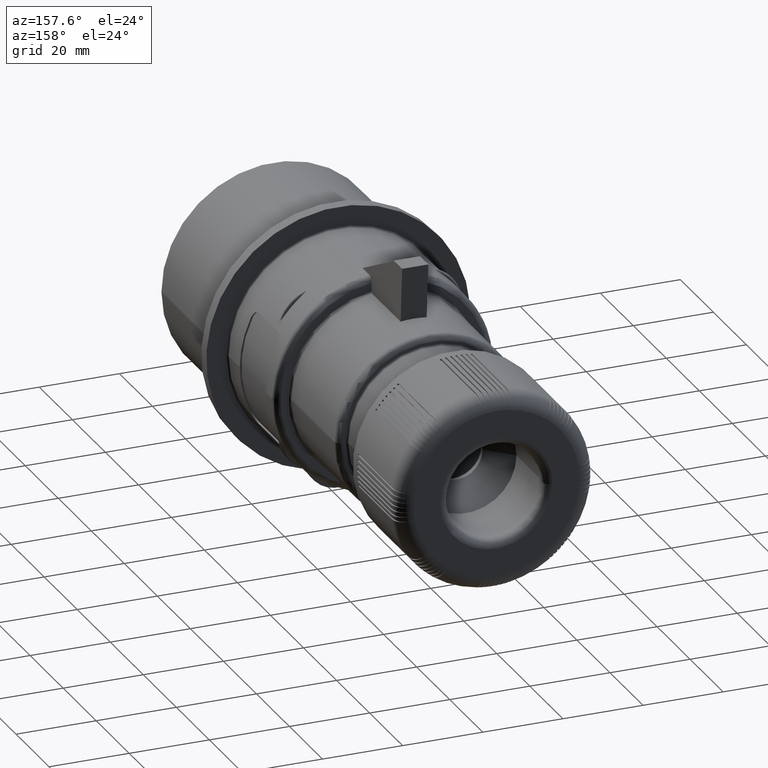
[diagram: clean part render]
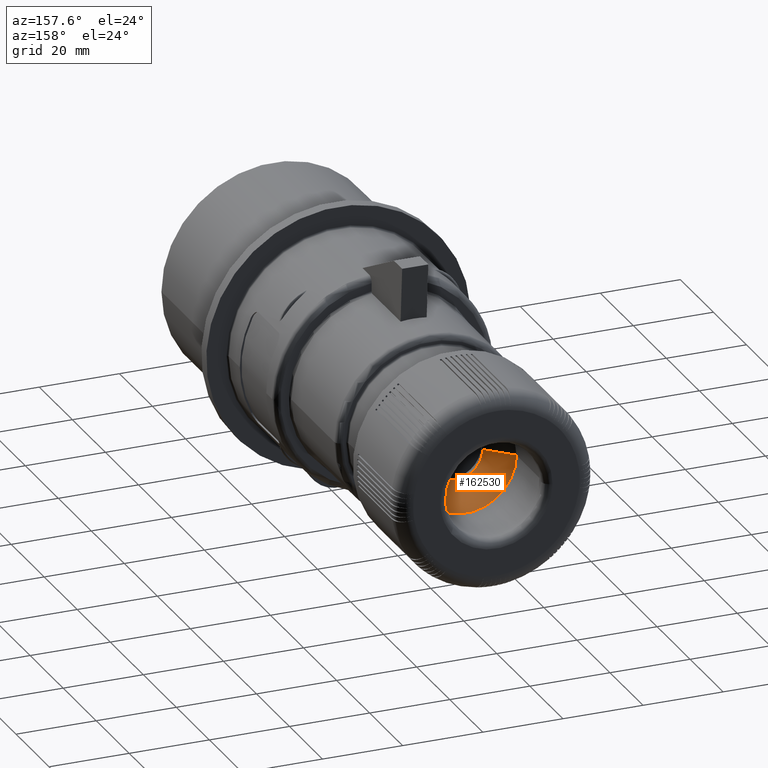
[diagram: same view with one face highlighted and labeled with its STEP entity id]
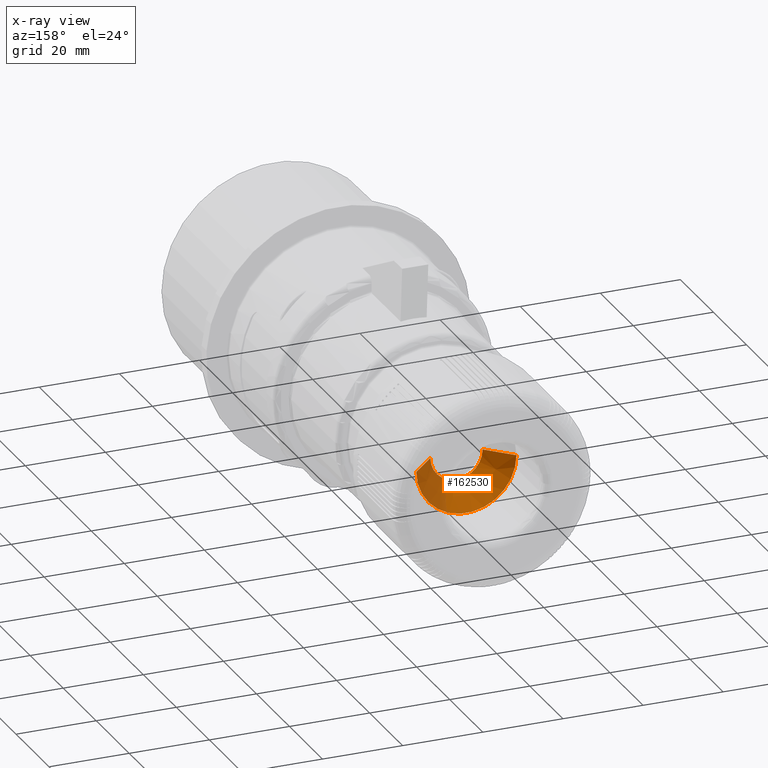
[diagram: x-ray of the same camera — body ghosted, the highlighted face saturated]
A machine part, auxiliary view. The second image highlights one B-rep face of the part: STEP entity #162530.
The next image is the same camera in x-ray: the body ghosted, the highlighted face saturated — about 27% of this face is hidden behind the body in this view.
In plain terms, the highlighted conical surface has half-angle 45 deg.
Its self-contained STEP definition (entity closure, byte-faithful):
#161920=CARTESIAN_POINT('',(-187.5,1.55715115425198,1.00791293107502E-12
));
#161930=VERTEX_POINT('',#161920);
#161960=CARTESIAN_POINT('',(-200.,1.55715115425202,1.00638212257609E-12)
);
#161970=DIRECTION('',(3.37423673639642E-15,1.,2.94209101525666E-15));
#161980=DIRECTION('',(-1.,3.37423673639642E-15,-4.96365579275044E-30));
#161990=AXIS2_PLACEMENT_3D('',#161960,#161970,#161980);
#162000=CIRCLE('',#161990,12.4999999999999);
#162010=CARTESIAN_POINT('',(-212.5,1.55715115425206,1.00638212257609E-12
));
#162020=VERTEX_POINT('',#162010);
#162030=EDGE_CURVE('',#161930,#162020,#162000,.T.);
#162220=CARTESIAN_POINT('',(-200.,1.55715115425202,1.00638212257609E-12)
);
#162230=DIRECTION('',(4.54747350886466E-15,1.,2.94209101525666E-15));
#162240=DIRECTION('',(1.,-4.54747350886466E-15,0.));
#162250=AXIS2_PLACEMENT_3D('',#162220,#162230,#162240);
#162260=CONICAL_SURFACE('',#162250,12.4999999999999,0.785398163397446);
#162270=CARTESIAN_POINT('',(-187.5,1.55715115425196,1.00638212257609E-12
));
#162280=DIRECTION('',(0.707106781186549,0.707106781186546,
2.08037250775599E-15));
#162290=VECTOR('',#162280,17.6776695296636);
#162300=LINE('',#162270,#162290);
#162310=CARTESIAN_POINT('',(-193.484089880937,-4.42693872668452,
9.88776385502898E-13));
#162320=VERTEX_POINT('',#162310);
#162330=EDGE_CURVE('',#162320,#161930,#162300,.T.);
#162340=ORIENTED_EDGE('',*,*,#162330,.T.);
#162350=CARTESIAN_POINT('',(-200.,-4.42693872668453,9.887763855029E-13))
;
#162360=DIRECTION('',(-3.37423673639642E-15,-1.,-2.94209101525666E-15));
#162370=DIRECTION('',(1.,-3.37423673639642E-15,4.96365579275044E-30));
#162380=AXIS2_PLACEMENT_3D('',#162350,#162360,#162370);
#162390=CIRCLE('',#162380,6.51591011906342);
#162400=CARTESIAN_POINT('',(-206.515910119063,-4.42693872668471,
9.87978416655813E-13));
#162410=VERTEX_POINT('',#162400);
#162420=EDGE_CURVE('',#162410,#162320,#162390,.T.);
#162430=ORIENTED_EDGE('',*,*,#162420,.T.);
#162440=CARTESIAN_POINT('',(-212.5,1.55715115425208,1.00485131407716E-12
));
#162450=DIRECTION('',(-0.707106781186542,0.707106781186553,
1.99377690213245E-15));
#162460=VECTOR('',#162450,17.6776695296636);
#162470=LINE('',#162440,#162460);
#162480=EDGE_CURVE('',#162410,#162020,#162470,.T.);
#162490=ORIENTED_EDGE('',*,*,#162480,.F.);
#162500=ORIENTED_EDGE('',*,*,#162030,.T.);
#162510=EDGE_LOOP('',(#162500,#162490,#162430,#162340));
#162520=FACE_OUTER_BOUND('',#162510,.T.);
#162530=ADVANCED_FACE('',(#162520),#162260,.F.);